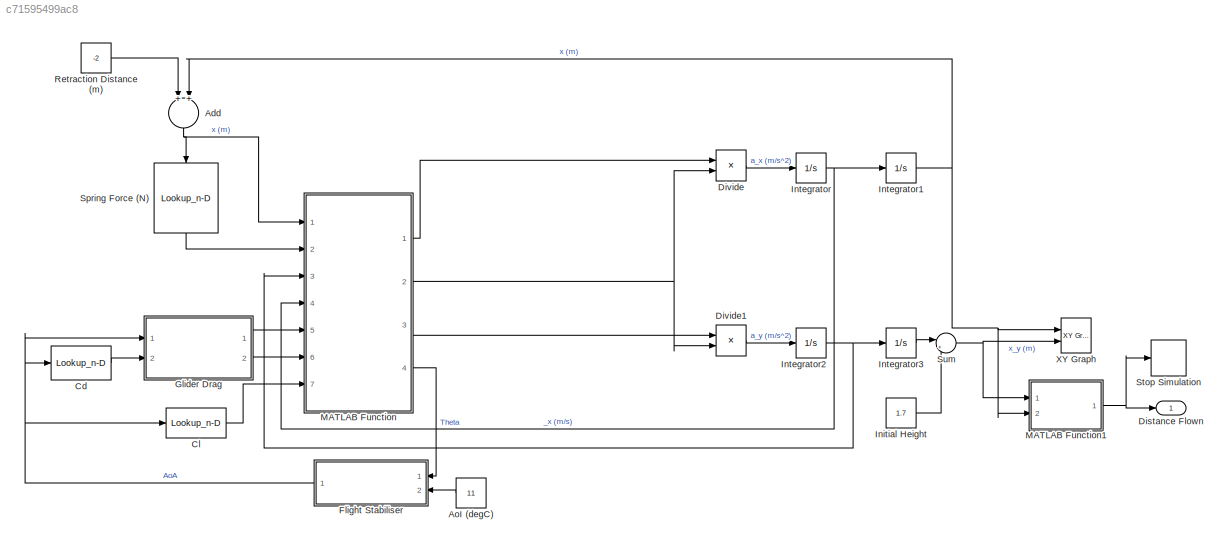
MODEL slx_c71595499ac8
KIND model
CONFIG AbsTol = auto
CONFIG EnableMultiTasking = off
CONFIG FixedStep = 0.01
CONFIG MaxStep = auto
CONFIG MinStep = auto
CONFIG RelTol = 1e-3
CONFIG SampleTimeConstraint = Unconstrained
CONFIG Solver = ode4
CONFIG SolverName = ode4
CONFIG StartTime = 0.0
CONFIG StopTime = 10.0
BLOCK [Sum] Add
  InputSameDT = off
  OutDataTypeStr = Inherit: Inherit via internal rule
  Ports = [2, 1]
  SaturateOnIntegerOverflow = off
BLOCK [Constant] AoI (degC)
  Value = 11
BLOCK [Lookup_n-D] Cd
  BreakpointsForDimension1 = [-7.25           -7        -6.75         -6.5        -6.25           -6        -5.75         -5.5           -5        -4.75         -4.5        -4.25           -4        -3.75         -3.5        -3.25           -3        -2.75         -2.5        -2.25           -2        -1.75         -1.5        -1.25           -1        -0.75         -0.5        -0.25            0         0.25          0.5    ...<+595ch>
  InternalRulePriority = Speed
  NumberOfTableDimensions = 1
  Ports = [1, 1]
  RndMeth = Simplest
  Table = [0.09777      0.0974     0.09689     0.09609     0.09351     0.08904     0.08679     0.08458     0.07885     0.07578      0.0702      0.0665     0.06176     0.05768     0.05386     0.04963     0.04581     0.03137     0.02739     0.02531     0.02361     0.02247     0.02137     0.02112     0.02128     0.02105     0.02044      0.0201     0.01838     0.01859     0.01848     0.01875     0.01858     0.0...<+521ch>
BLOCK [Lookup_n-D] Cl
  BreakpointsForDimension1 = [-7.25           -7        -6.75         -6.5        -6.25           -6        -5.75         -5.5           -5        -4.75         -4.5        -4.25           -4        -3.75         -3.5        -3.25           -3        -2.75         -2.5        -2.25           -2        -1.75         -1.5        -1.25           -1        -0.75         -0.5        -0.25            0         0.25          0.5    ...<+595ch>
  InternalRulePriority = Speed
  NumberOfTableDimensions = 1
  Ports = [1, 1]
  RndMeth = Simplest
  Table = [-0.3365     -0.3541     -0.3685     -0.3775     -0.3798     -0.3786     -0.3789     -0.3791     -0.3645     -0.3584     -0.3039     -0.2799      -0.238     -0.1968     -0.1591     -0.1118     -0.0705      0.0097      0.0582      0.0957      0.1363      0.1724       0.213       0.247      0.2882      0.3178      0.3638       0.393      0.4499      0.4792      0.5222      0.5478      0.5899      0....<+521ch>
BLOCK [Outport] Distance Flown
  IconDisplay = Port number
BLOCK [Product] Divide
  InputSameDT = off
  Inputs = */
  OutDataTypeStr = Inherit: Inherit via internal rule
  Ports = [2, 1]
  RndMeth = Floor
  SaturateOnIntegerOverflow = off
BLOCK [Product] Divide1
  InputSameDT = off
  Inputs = */
  OutDataTypeStr = Inherit: Inherit via internal rule
  Ports = [2, 1]
  RndMeth = Floor
  SaturateOnIntegerOverflow = off
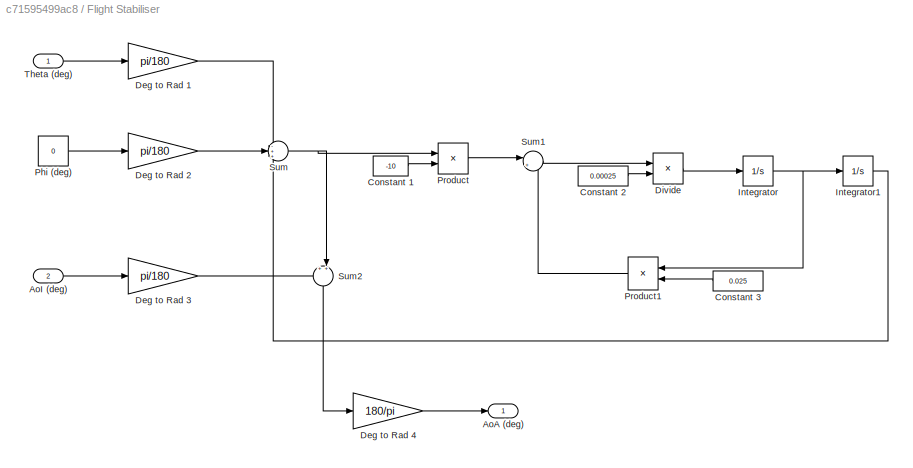
BLOCK [SubSystem] Flight Stabiliser
  Ports = [2, 1]
  RequestExecContextInheritance = off
  Variant = off
BLOCK [Outport] Flight Stabiliser/AoA (deg)
  IconDisplay = Port number
BLOCK [Inport] Flight Stabiliser/AoI (deg)
  IconDisplay = Port number
  Port = 2
BLOCK [Constant] Flight Stabiliser/Constant 1
  Value = -10
BLOCK [Constant] Flight Stabiliser/Constant 2
  Value = 0.00025
BLOCK [Constant] Flight Stabiliser/Constant 3
  Value = 0.025
BLOCK [Gain] Flight Stabiliser/Deg to Rad 1
  Gain = pi/180
  OutDataTypeStr = Inherit: Inherit via internal rule
  ParamDataTypeStr = Inherit: Inherit via internal rule
  SaturateOnIntegerOverflow = off
BLOCK [Gain] Flight Stabiliser/Deg to Rad 2
  Gain = pi/180
  OutDataTypeStr = Inherit: Inherit via internal rule
  ParamDataTypeStr = Inherit: Inherit via internal rule
  SaturateOnIntegerOverflow = off
BLOCK [Gain] Flight Stabiliser/Deg to Rad 3
  Gain = pi/180
  OutDataTypeStr = Inherit: Inherit via internal rule
  ParamDataTypeStr = Inherit: Inherit via internal rule
  SaturateOnIntegerOverflow = off
BLOCK [Gain] Flight Stabiliser/Deg to Rad 4
  Gain = 180/pi
  OutDataTypeStr = Inherit: Inherit via internal rule
  ParamDataTypeStr = Inherit: Inherit via internal rule
  SaturateOnIntegerOverflow = off
BLOCK [Product] Flight Stabiliser/Divide
  InputSameDT = off
  Inputs = */
  OutDataTypeStr = Inherit: Inherit via internal rule
  Ports = [2, 1]
  RndMeth = Floor
  SaturateOnIntegerOverflow = off
BLOCK [Integrator] Flight Stabiliser/Integrator
  Ports = [1, 1]
BLOCK [Integrator] Flight Stabiliser/Integrator1
  Ports = [1, 1]
BLOCK [Constant] Flight Stabiliser/Phi (deg)
  Value = 0
BLOCK [Product] Flight Stabiliser/Product
  InputSameDT = off
  OutDataTypeStr = Inherit: Inherit via internal rule
  Ports = [2, 1]
  RndMeth = Floor
  SaturateOnIntegerOverflow = off
BLOCK [Product] Flight Stabiliser/Product1
  InputSameDT = off
  OutDataTypeStr = Inherit: Inherit via internal rule
  Ports = [2, 1]
  RndMeth = Floor
  SaturateOnIntegerOverflow = off
BLOCK [Sum] Flight Stabiliser/Sum
  IconShape = round
  InputSameDT = off
  Inputs = -++
  OutDataTypeStr = Inherit: Inherit via internal rule
  Ports = [3, 1]
  SaturateOnIntegerOverflow = off
BLOCK [Sum] Flight Stabiliser/Sum1
  IconShape = round
  InputSameDT = off
  Inputs = |+-
  OutDataTypeStr = Inherit: Inherit via internal rule
  Ports = [2, 1]
  SaturateOnIntegerOverflow = off
BLOCK [Sum] Flight Stabiliser/Sum2
  IconShape = round
  InputSameDT = off
  Inputs = ++|
  OutDataTypeStr = Inherit: Inherit via internal rule
  Ports = [2, 1]
  SaturateOnIntegerOverflow = off
BLOCK [Inport] Flight Stabiliser/Theta (deg)
  IconDisplay = Port number
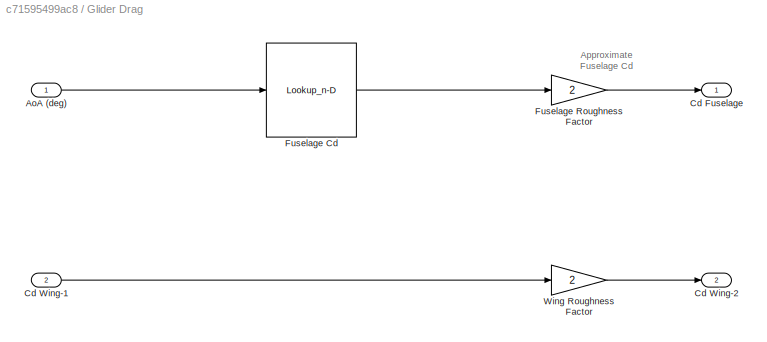
BLOCK [SubSystem] Glider Drag
  Ports = [2, 2]
  RequestExecContextInheritance = off
  Variant = off
BLOCK [Inport] Glider Drag/AoA (deg)
  IconDisplay = Port number
BLOCK [Outport] Glider Drag/Cd Fuselage
  IconDisplay = Port number
BLOCK [Inport] Glider Drag/Cd Wing-1
  IconDisplay = Port number
  Port = 2
BLOCK [Outport] Glider Drag/Cd Wing-2
  IconDisplay = Port number
  Port = 2
BLOCK [Lookup_n-D] Glider Drag/Fuselage Cd
  BreakpointsForDimension1 = [-20\n-18\n-16\n-14\n-12\n-10\n-8\n-6\n-5\n-4\n-2\n0\n2\n4\n6\n8\n10\n12\n14\n16\n18\n20]
  InternalRulePriority = Speed
  NumberOfTableDimensions = 1
  Ports = [1, 1]
  RndMeth = Simplest
  Table = [6.450028\n5.279805\n4.3229889\n3.2581778\n3.11992\n2.0828604\n1.4706347\n1.1015511\n0.94659083\n0.85580422\n0.73686307\n0.61427749\n0.75004173\n0.86217343\n1.1007998\n1.471149\n2.0086569\n3.0671467\n3.2583681\n4.2917072\n5.3059248\n6.3925707]
BLOCK [Gain] Glider Drag/Fuselage Roughness Factor
  Gain = 2
  OutDataTypeStr = Inherit: Inherit via internal rule
  ParamDataTypeStr = Inherit: Inherit via internal rule
  SaturateOnIntegerOverflow = off
BLOCK [Gain] Glider Drag/Wing Roughness Factor
  Gain = 2
  OutDataTypeStr = Inherit: Inherit via internal rule
  ParamDataTypeStr = Inherit: Inherit via internal rule
  SaturateOnIntegerOverflow = off
BLOCK [Constant] Initial Height
  Value = 1.7
BLOCK [Integrator] Integrator
  Ports = [1, 1]
BLOCK [Integrator] Integrator1
  Ports = [1, 1]
BLOCK [Integrator] Integrator2
  Ports = [1, 1]
BLOCK [Integrator] Integrator3
  Ports = [1, 1]
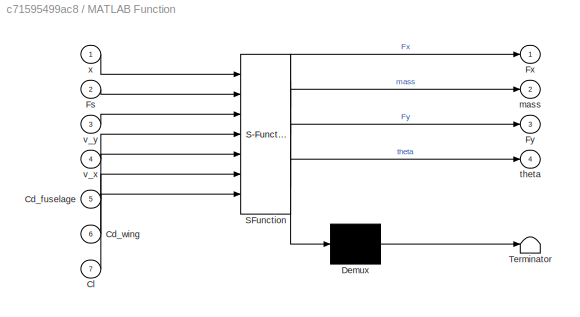
BLOCK [SubSystem] MATLAB Function
  ErrorFcn = Stateflow.Translate.translate
  PermitHierarchicalResolution = ExplicitOnly
  Ports = [7, 4]
  RequestExecContextInheritance = off
  SFBlockType = MATLAB Function
  TreatAsAtomicUnit = on
  Variant = off
BLOCK [Demux] MATLAB Function/ Demux 
  Outputs = 1
  Ports = [1, 1]
BLOCK [S-Function] MATLAB Function/ SFunction 
  EnableBusSupport = on
  FunctionName = sf_sfun
  PortCounts = [7 5]
  Ports = [7, 5]
  SFcnIsStateOwnerBlock = off
  SFunctionDeploymentMode = off
  Tag = Stateflow S-Function GliderSim 2
BLOCK [Terminator] MATLAB Function/ Terminator 
BLOCK [Inport] MATLAB Function/Cd_fuselage
  IconDisplay = Port number
  Port = 5
BLOCK [Inport] MATLAB Function/Cd_wing
  IconDisplay = Port number
  Port = 6
BLOCK [Inport] MATLAB Function/Cl
  IconDisplay = Port number
  Port = 7
BLOCK [Inport] MATLAB Function/Fs
  IconDisplay = Port number
  Port = 2
BLOCK [Outport] MATLAB Function/Fx
  IconDisplay = Port number
BLOCK [Outport] MATLAB Function/Fy
  IconDisplay = Port number
  Port = 3
BLOCK [Outport] MATLAB Function/mass
  IconDisplay = Port number
  Port = 2
BLOCK [Outport] MATLAB Function/theta
  IconDisplay = Port number
  Port = 4
BLOCK [Inport] MATLAB Function/v_x
  IconDisplay = Port number
  Port = 4
BLOCK [Inport] MATLAB Function/v_y
  IconDisplay = Port number
  Port = 3
BLOCK [Inport] MATLAB Function/x
  IconDisplay = Port number
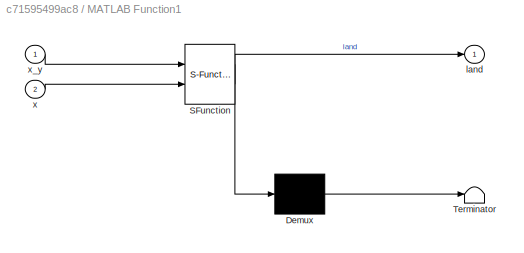
BLOCK [SubSystem] MATLAB Function1
  ErrorFcn = Stateflow.Translate.translate
  PermitHierarchicalResolution = ExplicitOnly
  Ports = [2, 1]
  RequestExecContextInheritance = off
  SFBlockType = MATLAB Function
  TreatAsAtomicUnit = on
  Variant = off
BLOCK [Demux] MATLAB Function1/ Demux 
  Outputs = 1
  Ports = [1, 1]
BLOCK [S-Function] MATLAB Function1/ SFunction 
  EnableBusSupport = on
  FunctionName = sf_sfun
  PortCounts = [2 2]
  Ports = [2, 2]
  SFcnIsStateOwnerBlock = off
  SFunctionDeploymentMode = off
  Tag = Stateflow S-Function GliderSim 1
BLOCK [Terminator] MATLAB Function1/ Terminator 
BLOCK [Outport] MATLAB Function1/land
  IconDisplay = Port number
BLOCK [Inport] MATLAB Function1/x
  IconDisplay = Port number
  Port = 2
BLOCK [Inport] MATLAB Function1/x_y
  IconDisplay = Port number
BLOCK [Constant] Retraction Distance (m)
  Value = -2
BLOCK [Lookup_n-D] Spring Force (N)
  BreakpointsForDimension1 = [-2.16;-1.86;-1.62;-1.32;-1.00;-0.78;-0.42;-0.20;0;1]
  InternalRulePriority = Speed
  NumberOfTableDimensions = 1
  Ports = [1, 1]
  RndMeth = Simplest
  Table = [75;62;56;48;40;33;23;13;0;0]
BLOCK [Stop] Stop Simulation
BLOCK [Sum] Sum
  IconShape = round
  InputSameDT = off
  Inputs = |++
  OutDataTypeStr = Inherit: Inherit via internal rule
  Ports = [2, 1]
  SaturateOnIntegerOverflow = off
BLOCK [Reference] XY Graph  REF=simulink/Sinks/XY Graph
  Ports = [2]
  SourceBlock = simulink/Sinks/XY Graph
  SourceProductBaseCode = SL
  SourceProductName = Simulink
  SourceType = XY scope.
ANNOTATION Glider Drag: Approximate Fuselage Cd
NET Add:1 -> MATLAB Function:1, Spring Force (N):1
LINE AoI (degC):1 -> Flight Stabiliser:2
LINE Cd:1 -> Glider Drag:2
LINE Cl:1 -> MATLAB Function:7
LINE Divide1:1 -> Integrator2:1
LINE Divide:1 -> Integrator:1
LINE Flight Stabiliser/AoI (deg):1 -> Flight Stabiliser/Deg to Rad 3:1
LINE Flight Stabiliser/Constant 1:1 -> Flight Stabiliser/Product:2
LINE Flight Stabiliser/Constant 2:1 -> Flight Stabiliser/Divide:2
LINE Flight Stabiliser/Constant 3:1 -> Flight Stabiliser/Product1:2
LINE Flight Stabiliser/Deg to Rad 1:1 -> Flight Stabiliser/Sum:1
LINE Flight Stabiliser/Deg to Rad 2:1 -> Flight Stabiliser/Sum:2
LINE Flight Stabiliser/Deg to Rad 3:1 -> Flight Stabiliser/Sum2:1
LINE Flight Stabiliser/Deg to Rad 4:1 -> Flight Stabiliser/AoA (deg):1
LINE Flight Stabiliser/Divide:1 -> Flight Stabiliser/Integrator:1
LINE Flight Stabiliser/Integrator1:1 -> Flight Stabiliser/Sum:3
NET Flight Stabiliser/Integrator:1 -> Flight Stabiliser/Integrator1:1, Flight Stabiliser/Product1:1
LINE Flight Stabiliser/Phi (deg):1 -> Flight Stabiliser/Deg to Rad 2:1
LINE Flight Stabiliser/Product1:1 -> Flight Stabiliser/Sum1:2
LINE Flight Stabiliser/Product:1 -> Flight Stabiliser/Sum1:1
LINE Flight Stabiliser/Sum1:1 -> Flight Stabiliser/Divide:1
LINE Flight Stabiliser/Sum2:1 -> Flight Stabiliser/Deg to Rad 4:1
NET Flight Stabiliser/Sum:1 -> Flight Stabiliser/Product:1, Flight Stabiliser/Sum2:2
LINE Flight Stabiliser/Theta (deg):1 -> Flight Stabiliser/Deg to Rad 1:1
NET Flight Stabiliser:1 -> Cd:1, Cl:1, Glider Drag:1
LINE Glider Drag/AoA (deg):1 -> Glider Drag/Fuselage Cd:1
LINE Glider Drag/Cd Wing-1:1 -> Glider Drag/Wing Roughness Factor:1
LINE Glider Drag/Fuselage Cd:1 -> Glider Drag/Fuselage Roughness Factor:1
LINE Glider Drag/Fuselage Roughness Factor:1 -> Glider Drag/Cd Fuselage:1
LINE Glider Drag/Wing Roughness Factor:1 -> Glider Drag/Cd Wing-2:1
LINE Glider Drag:1 -> MATLAB Function:5
LINE Glider Drag:2 -> MATLAB Function:6
LINE Initial Height:1 -> Sum:2
NET Integrator1:1 -> Add:2, MATLAB Function1:2, XY Graph:1
NET Integrator2:1 -> Integrator3:1, MATLAB Function:3
LINE Integrator3:1 -> Sum:1
NET Integrator:1 -> Integrator1:1, MATLAB Function:4
NET MATLAB Function1:1 -> Distance Flown:1, Stop Simulation:1
LINE MATLAB Function:1 -> Divide:1
NET MATLAB Function:2 -> Divide1:2, Divide:2
LINE MATLAB Function:3 -> Divide1:1
LINE MATLAB Function:4 -> Flight Stabiliser:1
LINE Retraction Distance (m):1 -> Add:1
LINE Spring Force (N):1 -> MATLAB Function:2
NET Sum:1 -> MATLAB Function1:1, XY Graph:2
note: NET lines group one-source signal fan-out (src -> all destinations, sorted); 1:1 wires keep LINE
CHART MATLAB Function1 states=1 transitions=1
  STATE_LABEL 'eML_blk_kernel()'
  STATE_LABEL 'SCRIPT:\nfunction land = fcn(x_y, x)\n\nif x_y > 0\n    land = 0;\nelse\n    land = x;\nend'
CHART MATLAB Function states=1 transitions=1
  STATE_LABEL 'eML_blk_kernel()'
  STATE_LABEL 'SCRIPT:\nfunction [Fx, mass, Fy, theta] = fcn(x, Fs, v_y, v_x, Cd_fuselage, Cd_wing, Cl)\n\nAwing = 0.06;                   %wing lift/drag area (m^2)\nAfuselage = 0.002875;    %fuselage drag area(m^2)\nrho = 1.225;                    %air density (kg/m^3)\n\nmsled = 0.1;            %mass of the sled (kg)\nmglider = 0.021 + 0.043;%mass of glider (carbon fiber rod plus styrofoam) (kg)\nmqrp = 0.03;         ...<+1018ch>'
